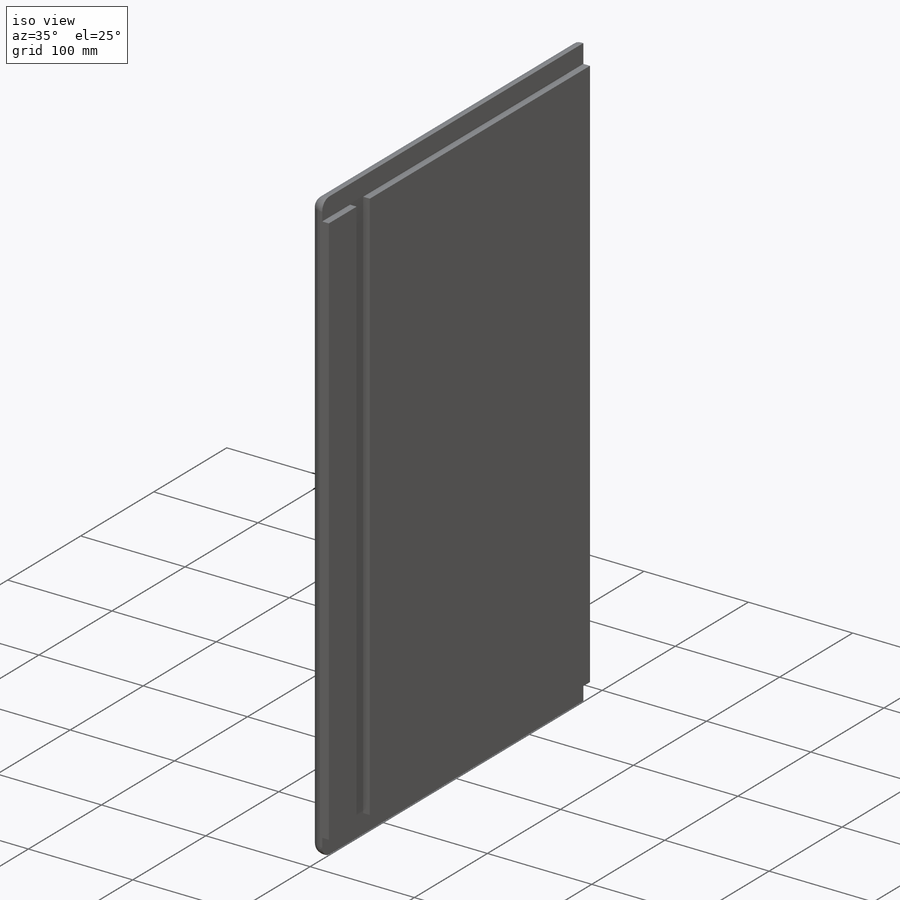
[diagram: iso view]
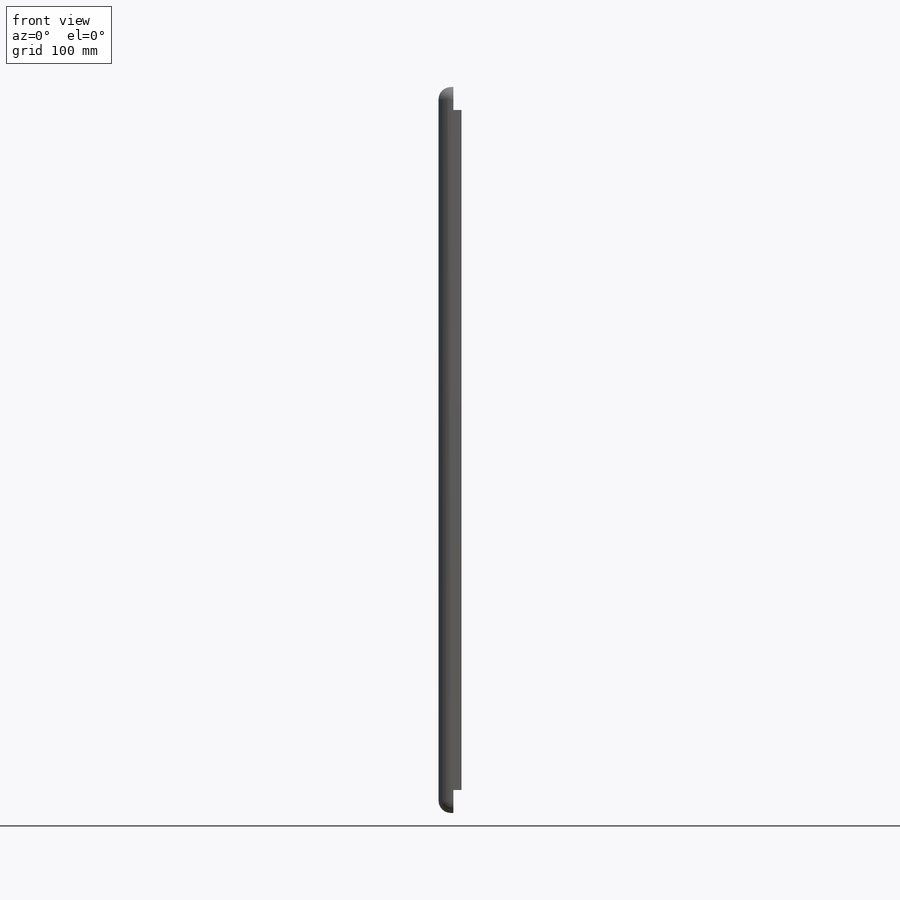
[diagram: front view]
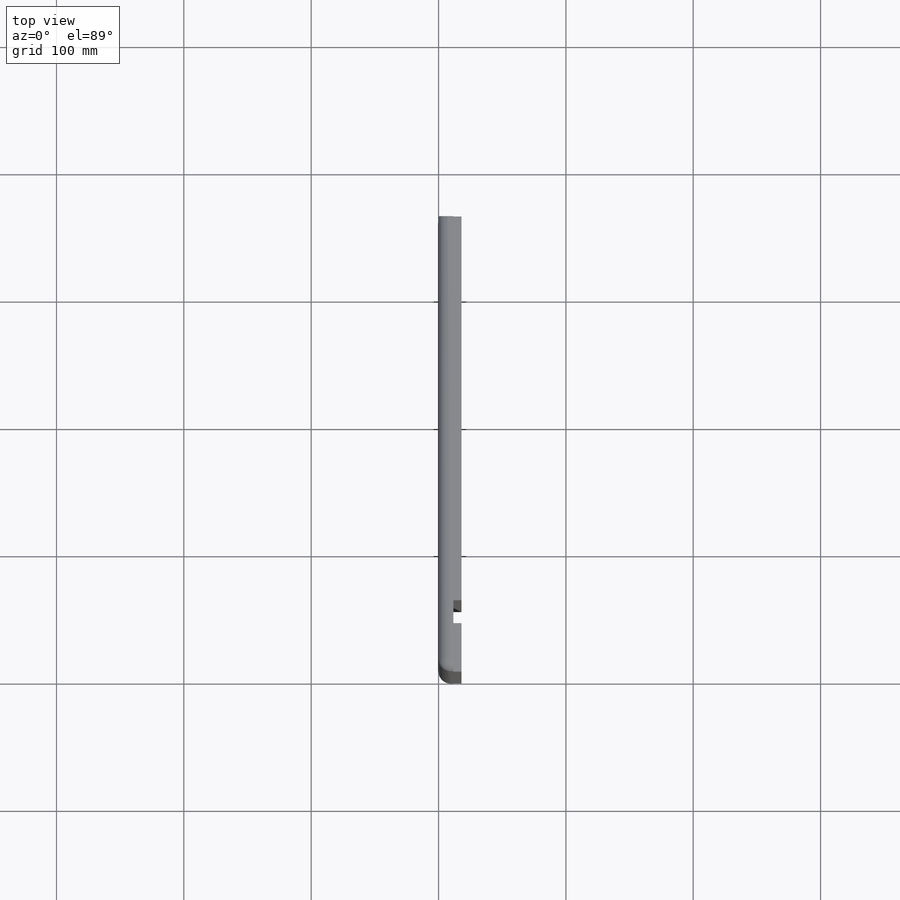
[diagram: top view]
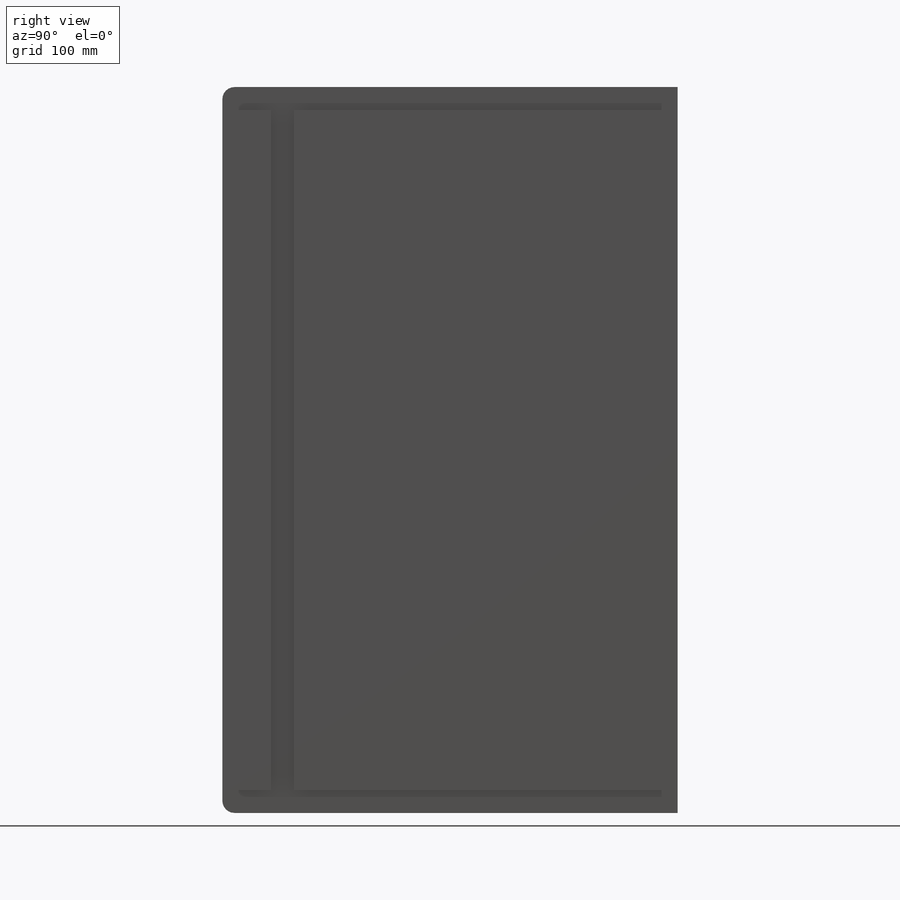
[diagram: right view]
SOLIDWORKS PART (.sldprt)
format: sldprt  version: not decoded by parser v0  size: 214,528 bytes
history: native  units: mm
features: sketch x4, cut_extrude x2, material x1, extrude x1, fillet x1 (+13 scaffold rows collapsed)
feature tree (22):
  scaffold x13  (default folders/planes/origin — collapsed)
  material  "Material <not specified>"
  sketch  "Sketch1"  dims[D1=357.5mm D2=570.0mm]
  extrude  "Boss-Extrude1"  Depth=18mm
  sketch  "Sketch5"  dims[D1=18.0mm D2=38.1mm D3=6.35mm D4=6.35mm]
  cut_extrude  "Cut-Extrude3"  Depth=6.35mm
  sketch  "Sketch6"  dims[D1=12.7mm D2=6.35mm D3=6.35mm]
  sketch  "Sketch7"  dims[D1=18.0mm D2=18.0mm]
  cut_extrude  "Cut-Extrude4"  Depth=6.35mm
  fillet  "Fillet1"  Radius=9.525mm
decode coverage: 8 of 8 modeling features carry decoded parameters
note: suppression state not decoded; provenance and decode notes live in map.json
